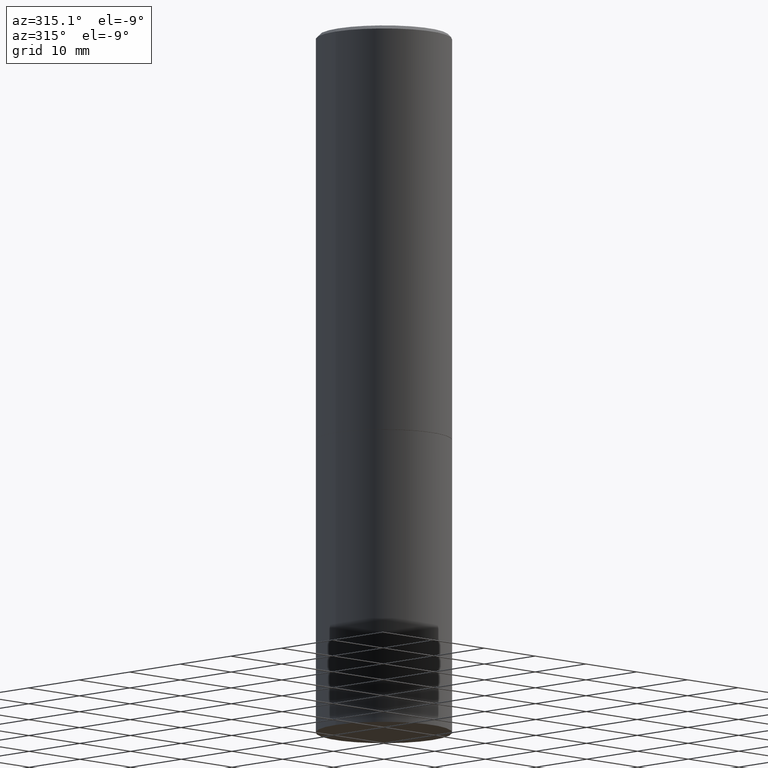
[diagram: clean part render]
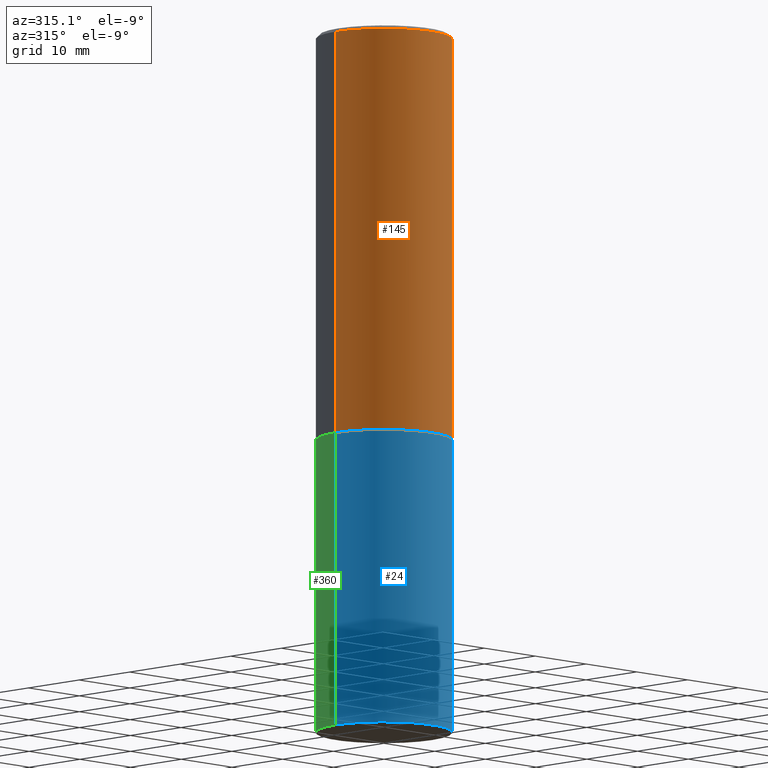
[diagram: same view with three faces highlighted in distinct colors, each labeled with its STEP entity id]
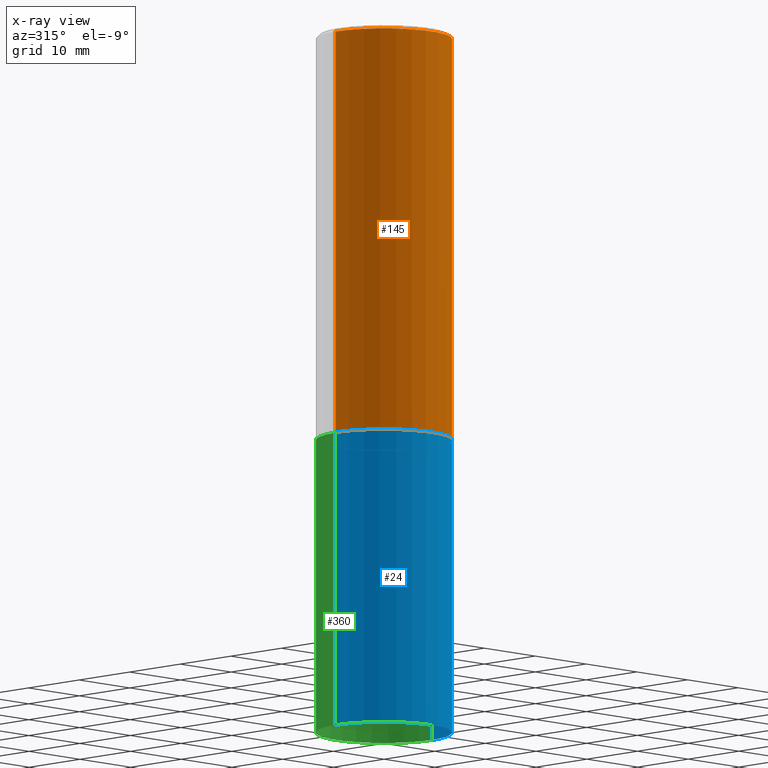
[diagram: x-ray of the same camera — body ghosted, the three highlighted faces saturated]
A machine part, auxiliary view with three faces highlighted in distinct colors.
The next image is the same camera in x-ray (body ghosted, the three faces saturated) — at least one of them is partly hidden behind the body in this view.
Their STEP definitions:

[orange] entity #145 — the highlighted cylindrical surface (partial cylindrical patch) has radius 9.525 mm, axis along (-0, 0, 1).
#18 = VECTOR ( 'NONE', #37, 39.37007874015748143 ) ;
#37 = DIRECTION ( 'NONE',  ( -2.445468806185136877E-29, 3.491481338843145188E-15, 1.000000000000000000 ) ) ;
#38 = DIRECTION ( 'NONE',  ( -2.445468806185136597E-29, 3.491481338843145583E-15, 1.000000000000000000 ) ) ;
#63 = CYLINDRICAL_SURFACE ( 'NONE', #147, 0.3749999999999998890 ) ;
#64 = DIRECTION ( 'NONE',  ( -2.445468806185136597E-29, 3.491481338843145583E-15, 1.000000000000000000 ) ) ;
#86 = EDGE_LOOP ( 'NONE', ( #194, #279, #234, #273 ) ) ;
#87 = CIRCLE ( 'NONE', #290, 0.3750000000000000555 ) ;
#89 = DIRECTION ( 'NONE',  ( 1.000000000000000000, -6.982962677686266711E-15, 0.000000000000000000 ) ) ;
#91 = DIRECTION ( 'NONE',  ( 1.000000000000000000, -6.982962677686266711E-15, 4.876176775795935793E-29 ) ) ;
#93 = LINE ( 'NONE', #167, #114 ) ;
#97 = CARTESIAN_POINT ( 'NONE',  ( 0.3749999999999997780, -2.642516375941186056E-15, -0.02000000000000008715 ) ) ;
#114 = VECTOR ( 'NONE', #146, 39.37007874015748143 ) ;
#115 = CARTESIAN_POINT ( 'NONE',  ( 5.499859345110371740E-29, -7.852341531058233864E-15, -2.249000000000000110 ) ) ;
#120 = CARTESIAN_POINT ( 'NONE',  ( 4.890937612370294178E-31, -6.982962677686321191E-17, -0.02000000000000008715 ) ) ;
#133 = VERTEX_POINT ( 'NONE', #288 ) ;
#145 = ADVANCED_FACE ( 'NONE', ( #348 ), #63, .T. ) ;
#146 = DIRECTION ( 'NONE',  ( -2.445468806185136877E-29, 3.491481338843145188E-15, 1.000000000000000000 ) ) ;
#147 = AXIS2_PLACEMENT_3D ( 'NONE', #201, #172, #91 ) ;
#151 = CARTESIAN_POINT ( 'NONE',  ( -0.3750000000000000555, -1.296550319817170517E-15, -2.249000000000000110 ) ) ;
#153 = EDGE_CURVE ( 'NONE', #277, #295, #87, .T. ) ;
#160 = EDGE_CURVE ( 'NONE', #133, #283, #175, .T. ) ;
#167 = CARTESIAN_POINT ( 'NONE',  ( -0.3749999999999998890, 2.664535259100374908E-15, -1.844600658845589038E-29 ) ) ;
#172 = DIRECTION ( 'NONE',  ( -2.445468806185136597E-29, 3.491481338843145583E-15, 1.000000000000000000 ) ) ;
#173 = EDGE_CURVE ( 'NONE', #277, #133, #93, .T. ) ;
#175 = CIRCLE ( 'NONE', #274, 0.3749999999999997780 ) ;
#194 = ORIENTED_EDGE ( 'NONE', *, *, #173, .F. ) ;
#201 = CARTESIAN_POINT ( 'NONE',  ( 0.000000000000000000, 0.000000000000000000, 0.000000000000000000 ) ) ;
#205 = CARTESIAN_POINT ( 'NONE',  ( 0.3750000000000000555, -1.047095253519058546E-14, -2.249000000000000110 ) ) ;
#227 = DIRECTION ( 'NONE',  ( 1.000000000000000000, -6.982962677686265922E-15, 0.000000000000000000 ) ) ;
#234 = ORIENTED_EDGE ( 'NONE', *, *, #240, .T. ) ;
#240 = EDGE_CURVE ( 'NONE', #295, #283, #316, .T. ) ;
#273 = ORIENTED_EDGE ( 'NONE', *, *, #160, .F. ) ;
#274 = AXIS2_PLACEMENT_3D ( 'NONE', #120, #38, #227 ) ;
#277 = VERTEX_POINT ( 'NONE', #151 ) ;
#279 = ORIENTED_EDGE ( 'NONE', *, *, #153, .T. ) ;
#283 = VERTEX_POINT ( 'NONE', #97 ) ;
#287 = CARTESIAN_POINT ( 'NONE',  ( 0.3749999999999998890, -2.618611004132349228E-15, 1.828566290923475362E-29 ) ) ;
#288 = CARTESIAN_POINT ( 'NONE',  ( -0.3749999999999997780, 2.548781377355484746E-15, -0.02000000000000008715 ) ) ;
#290 = AXIS2_PLACEMENT_3D ( 'NONE', #115, #64, #89 ) ;
#295 = VERTEX_POINT ( 'NONE', #205 ) ;
#316 = LINE ( 'NONE', #287, #18 ) ;
#348 = FACE_OUTER_BOUND ( 'NONE', #86, .T. ) ;

[blue] entity #24 — the highlighted cylindrical surface (partial cylindrical patch) has radius 9.525 mm, axis along (-0, 0, 1).
#7 = EDGE_CURVE ( 'NONE', #247, #269, #49, .T. ) ;
#9 = EDGE_CURVE ( 'NONE', #54, #165, #364, .T. ) ;
#10 = VECTOR ( 'NONE', #310, 39.37007874015748143 ) ;
#24 = ADVANCED_FACE ( 'NONE', ( #109 ), #340, .T. ) ;
#26 = DIRECTION ( 'NONE',  ( -2.445468806185136877E-29, 3.491481338843145188E-15, 1.000000000000000000 ) ) ;
#46 = CARTESIAN_POINT ( 'NONE',  ( -0.3750000000000000555, -8.028126341106757280E-15, -2.250000000000000000 ) ) ;
#49 = LINE ( 'NONE', #281, #123 ) ;
#54 = VERTEX_POINT ( 'NONE', #217 ) ;
#59 = CARTESIAN_POINT ( 'NONE',  ( 0.000000000000000000, 0.000000000000000000, 0.000000000000000000 ) ) ;
#72 = AXIS2_PLACEMENT_3D ( 'NONE', #202, #209, #354 ) ;
#83 = EDGE_LOOP ( 'NONE', ( #303, #210, #362, #164 ) ) ;
#109 = FACE_OUTER_BOUND ( 'NONE', #83, .T. ) ;
#113 = DIRECTION ( 'NONE',  ( -2.445468806185136597E-29, 3.491481338843145583E-15, 1.000000000000000000 ) ) ;
#116 = CARTESIAN_POINT ( 'NONE',  ( 9.476191623967404313E-29, -1.352949018801718908E-14, -3.875000000000000000 ) ) ;
#123 = VECTOR ( 'NONE', #26, 39.37007874015748143 ) ;
#164 = ORIENTED_EDGE ( 'NONE', *, *, #259, .F. ) ;
#165 = VERTEX_POINT ( 'NONE', #232 ) ;
#166 = CIRCLE ( 'NONE', #256, 0.3750000000000000555 ) ;
#177 = CARTESIAN_POINT ( 'NONE',  ( -0.3750000000000000555, -8.028126341106757280E-15, -3.875000000000000000 ) ) ;
#202 = CARTESIAN_POINT ( 'NONE',  ( 5.502304813916557343E-29, -7.855833012397078448E-15, -2.250000000000000000 ) ) ;
#209 = DIRECTION ( 'NONE',  ( -2.445468806185136597E-29, 3.491481338843145583E-15, 1.000000000000000000 ) ) ;
#210 = ORIENTED_EDGE ( 'NONE', *, *, #238, .T. ) ;
#217 = CARTESIAN_POINT ( 'NONE',  ( 0.3750000000000000555, -1.614810119214954068E-14, -3.875000000000000000 ) ) ;
#226 = DIRECTION ( 'NONE',  ( 1.000000000000000000, -6.982962677686266711E-15, 0.000000000000000000 ) ) ;
#232 = CARTESIAN_POINT ( 'NONE',  ( 0.3750000000000000555, -1.047444401652942689E-14, -2.250000000000000000 ) ) ;
#236 = AXIS2_PLACEMENT_3D ( 'NONE', #59, #245, #307 ) ;
#238 = EDGE_CURVE ( 'NONE', #247, #54, #166, .T. ) ;
#245 = DIRECTION ( 'NONE',  ( -2.445468806185136597E-29, 3.491481338843145583E-15, 1.000000000000000000 ) ) ;
#247 = VERTEX_POINT ( 'NONE', #177 ) ;
#251 = CARTESIAN_POINT ( 'NONE',  ( 0.3750000000000000555, -2.618611004132350016E-15, 1.828566290923476203E-29 ) ) ;
#256 = AXIS2_PLACEMENT_3D ( 'NONE', #116, #113, #226 ) ;
#259 = EDGE_CURVE ( 'NONE', #269, #165, #324, .T. ) ;
#269 = VERTEX_POINT ( 'NONE', #46 ) ;
#281 = CARTESIAN_POINT ( 'NONE',  ( -0.3750000000000000555, 2.664535259100376091E-15, -1.844600658845589598E-29 ) ) ;
#303 = ORIENTED_EDGE ( 'NONE', *, *, #7, .F. ) ;
#307 = DIRECTION ( 'NONE',  ( 1.000000000000000000, -6.982962677686265922E-15, 4.876176775795935793E-29 ) ) ;
#310 = DIRECTION ( 'NONE',  ( -2.445468806185136877E-29, 3.491481338843145188E-15, 1.000000000000000000 ) ) ;
#324 = CIRCLE ( 'NONE', #72, 0.3750000000000000555 ) ;
#340 = CYLINDRICAL_SURFACE ( 'NONE', #236, 0.3750000000000000555 ) ;
#354 = DIRECTION ( 'NONE',  ( 1.000000000000000000, -6.982962677686264344E-15, 0.000000000000000000 ) ) ;
#362 = ORIENTED_EDGE ( 'NONE', *, *, #9, .T. ) ;
#364 = LINE ( 'NONE', #251, #10 ) ;

[green] entity #360 — the highlighted cylindrical surface (partial cylindrical patch) has radius 9.525 mm, axis along (-0, 0, 1).
#2 = ORIENTED_EDGE ( 'NONE', *, *, #40, .F. ) ;
#5 = DIRECTION ( 'NONE',  ( -2.445468806185136597E-29, 3.491481338843145583E-15, 1.000000000000000000 ) ) ;
#7 = EDGE_CURVE ( 'NONE', #247, #269, #49, .T. ) ;
#9 = EDGE_CURVE ( 'NONE', #54, #165, #364, .T. ) ;
#10 = VECTOR ( 'NONE', #310, 39.37007874015748143 ) ;
#26 = DIRECTION ( 'NONE',  ( -2.445468806185136877E-29, 3.491481338843145188E-15, 1.000000000000000000 ) ) ;
#29 = AXIS2_PLACEMENT_3D ( 'NONE', #314, #5, #319 ) ;
#40 = EDGE_CURVE ( 'NONE', #165, #269, #342, .T. ) ;
#43 = AXIS2_PLACEMENT_3D ( 'NONE', #359, #137, #192 ) ;
#46 = CARTESIAN_POINT ( 'NONE',  ( -0.3750000000000000555, -8.028126341106757280E-15, -2.250000000000000000 ) ) ;
#49 = LINE ( 'NONE', #281, #123 ) ;
#54 = VERTEX_POINT ( 'NONE', #217 ) ;
#70 = DIRECTION ( 'NONE',  ( 1.000000000000000000, -6.982962677686265922E-15, 4.876176775795935793E-29 ) ) ;
#76 = EDGE_CURVE ( 'NONE', #54, #247, #135, .T. ) ;
#123 = VECTOR ( 'NONE', #26, 39.37007874015748143 ) ;
#135 = CIRCLE ( 'NONE', #29, 0.3750000000000000555 ) ;
#137 = DIRECTION ( 'NONE',  ( -2.445468806185136597E-29, 3.491481338843145583E-15, 1.000000000000000000 ) ) ;
#155 = EDGE_LOOP ( 'NONE', ( #179, #350, #2, #218 ) ) ;
#165 = VERTEX_POINT ( 'NONE', #232 ) ;
#170 = AXIS2_PLACEMENT_3D ( 'NONE', #292, #266, #70 ) ;
#177 = CARTESIAN_POINT ( 'NONE',  ( -0.3750000000000000555, -8.028126341106757280E-15, -3.875000000000000000 ) ) ;
#179 = ORIENTED_EDGE ( 'NONE', *, *, #76, .T. ) ;
#192 = DIRECTION ( 'NONE',  ( 1.000000000000000000, -6.982962677686264344E-15, 0.000000000000000000 ) ) ;
#217 = CARTESIAN_POINT ( 'NONE',  ( 0.3750000000000000555, -1.614810119214954068E-14, -3.875000000000000000 ) ) ;
#218 = ORIENTED_EDGE ( 'NONE', *, *, #9, .F. ) ;
#232 = CARTESIAN_POINT ( 'NONE',  ( 0.3750000000000000555, -1.047444401652942689E-14, -2.250000000000000000 ) ) ;
#247 = VERTEX_POINT ( 'NONE', #177 ) ;
#251 = CARTESIAN_POINT ( 'NONE',  ( 0.3750000000000000555, -2.618611004132350016E-15, 1.828566290923476203E-29 ) ) ;
#266 = DIRECTION ( 'NONE',  ( -2.445468806185136597E-29, 3.491481338843145583E-15, 1.000000000000000000 ) ) ;
#269 = VERTEX_POINT ( 'NONE', #46 ) ;
#270 = CYLINDRICAL_SURFACE ( 'NONE', #170, 0.3750000000000000555 ) ;
#281 = CARTESIAN_POINT ( 'NONE',  ( -0.3750000000000000555, 2.664535259100376091E-15, -1.844600658845589598E-29 ) ) ;
#292 = CARTESIAN_POINT ( 'NONE',  ( 0.000000000000000000, 0.000000000000000000, 0.000000000000000000 ) ) ;
#310 = DIRECTION ( 'NONE',  ( -2.445468806185136877E-29, 3.491481338843145188E-15, 1.000000000000000000 ) ) ;
#314 = CARTESIAN_POINT ( 'NONE',  ( 9.476191623967404313E-29, -1.352949018801718908E-14, -3.875000000000000000 ) ) ;
#319 = DIRECTION ( 'NONE',  ( 1.000000000000000000, -6.982962677686266711E-15, 0.000000000000000000 ) ) ;
#327 = FACE_OUTER_BOUND ( 'NONE', #155, .T. ) ;
#342 = CIRCLE ( 'NONE', #43, 0.3750000000000000555 ) ;
#350 = ORIENTED_EDGE ( 'NONE', *, *, #7, .T. ) ;
#359 = CARTESIAN_POINT ( 'NONE',  ( 5.502304813916557343E-29, -7.855833012397078448E-15, -2.250000000000000000 ) ) ;
#360 = ADVANCED_FACE ( 'NONE', ( #327 ), #270, .T. ) ;
#364 = LINE ( 'NONE', #251, #10 ) ;